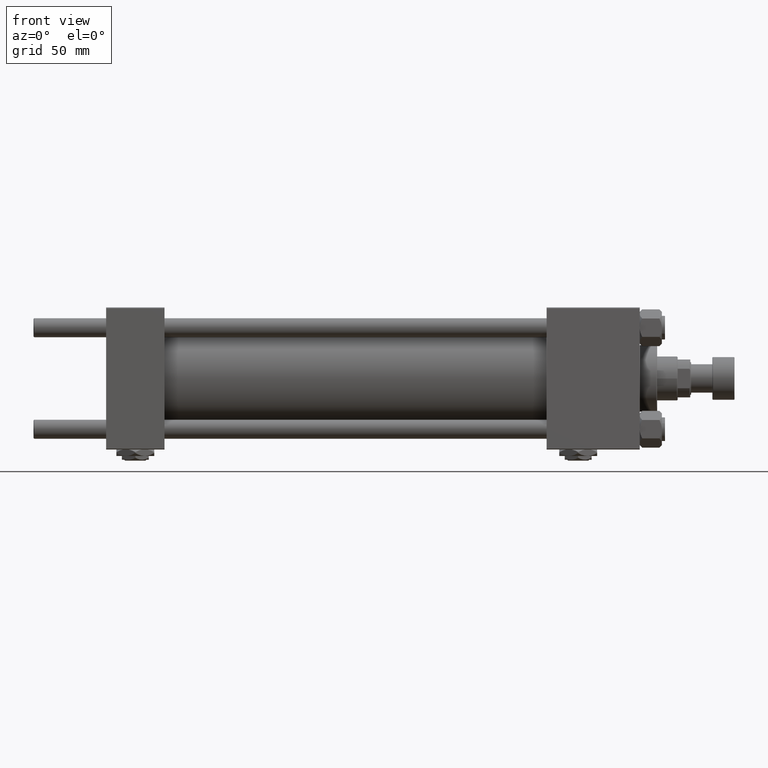
[diagram: clean part render]
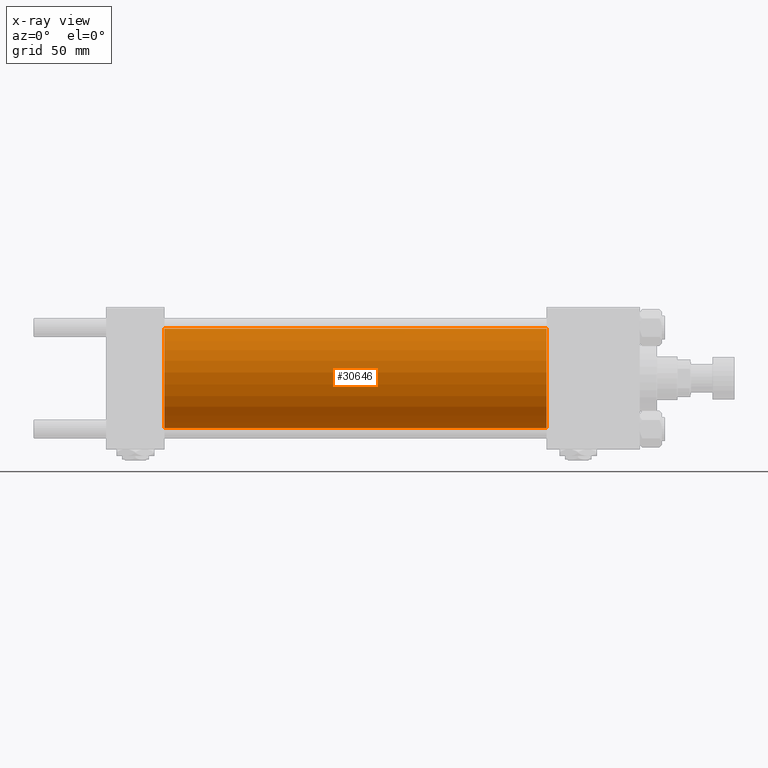
[diagram: x-ray — body ghosted, one internal face saturated and labeled with its STEP entity id]
A machine part, front view, then the same camera in x-ray: the body is ghosted and one INTERNAL B-rep face — a face not visible from any outside direction — is saturated and labeled: STEP entity #30646.
In plain terms, the highlighted cylindrical surface (partial cylindrical patch) has radius 31.5 mm, axis along (-1, -0, -0).
Its self-contained STEP definition (entity closure, byte-faithful):
#398 = CARTESIAN_POINT ( 'NONE',  ( 278.9999999999999432, 0.000000000000000000, 0.000000000000000000 ) ) ;
#1394 = DIRECTION ( 'NONE',  ( -1.000000000000000000, -0.000000000000000000, -0.000000000000000000 ) ) ;
#1429 = ORIENTED_EDGE ( 'NONE', *, *, #29437, .T. ) ;
#2427 = EDGE_CURVE ( 'NONE', #38992, #15742, #5666, .T. ) ;
#4304 = DIRECTION ( 'NONE',  ( 0.000000000000000000, 0.000000000000000000, 1.000000000000000000 ) ) ;
#5666 = CIRCLE ( 'NONE', #26778, 31.50000000000000000 ) ;
#6058 = DIRECTION ( 'NONE',  ( 0.000000000000000000, 0.000000000000000000, -1.000000000000000000 ) ) ;
#11479 = CYLINDRICAL_SURFACE ( 'NONE', #22928, 31.50000000000000000 ) ;
#11750 = CARTESIAN_POINT ( 'NONE',  ( 278.9999999999999432, 3.857637417314162689E-15, -31.50000000000000000 ) ) ;
#12055 = DIRECTION ( 'NONE',  ( 1.000000000000000000, 0.000000000000000000, 0.000000000000000000 ) ) ;
#15742 = VERTEX_POINT ( 'NONE', #40505 ) ;
#18676 = AXIS2_PLACEMENT_3D ( 'NONE', #398, #12055, #44072 ) ;
#19689 = CARTESIAN_POINT ( 'NONE',  ( 278.9999999999999432, 0.000000000000000000, 0.000000000000000000 ) ) ;
#20907 = CARTESIAN_POINT ( 'NONE',  ( 278.9999999999999432, 0.000000000000000000, 31.50000000000000000 ) ) ;
#21173 = ORIENTED_EDGE ( 'NONE', *, *, #34242, .T. ) ;
#22218 = DIRECTION ( 'NONE',  ( 1.000000000000000000, 0.000000000000000000, 0.000000000000000000 ) ) ;
#22928 = AXIS2_PLACEMENT_3D ( 'NONE', #19689, #40557, #4304 ) ;
#23725 = CARTESIAN_POINT ( 'NONE',  ( 278.9999999999999432, 3.857637417314162689E-15, -31.50000000000000000 ) ) ;
#24322 = VERTEX_POINT ( 'NONE', #20907 ) ;
#26171 = CARTESIAN_POINT ( 'NONE',  ( 37.00000000000000000, 0.000000000000000000, 0.000000000000000000 ) ) ;
#26327 = EDGE_CURVE ( 'NONE', #24322, #38992, #45567, .T. ) ;
#26755 = VERTEX_POINT ( 'NONE', #23725 ) ;
#26778 = AXIS2_PLACEMENT_3D ( 'NONE', #26171, #22218, #6058 ) ;
#28016 = VECTOR ( 'NONE', #37063, 1000.000000000000000 ) ;
#29437 = EDGE_CURVE ( 'NONE', #24322, #26755, #32993, .T. ) ;
#30646 = ADVANCED_FACE ( 'NONE', ( #40302 ), #11479, .F. ) ;
#32612 = CARTESIAN_POINT ( 'NONE',  ( 278.9999999999999432, 0.000000000000000000, 31.50000000000000000 ) ) ;
#32993 = CIRCLE ( 'NONE', #18676, 31.50000000000000000 ) ;
#34242 = EDGE_CURVE ( 'NONE', #26755, #15742, #41815, .T. ) ;
#37063 = DIRECTION ( 'NONE',  ( -1.000000000000000000, -0.000000000000000000, -0.000000000000000000 ) ) ;
#37696 = EDGE_LOOP ( 'NONE', ( #1429, #21173, #47312, #45122 ) ) ;
#38992 = VERTEX_POINT ( 'NONE', #43260 ) ;
#40302 = FACE_OUTER_BOUND ( 'NONE', #37696, .T. ) ;
#40505 = CARTESIAN_POINT ( 'NONE',  ( 37.00000000000000000, 3.857637417314162689E-15, -31.50000000000000000 ) ) ;
#40557 = DIRECTION ( 'NONE',  ( -1.000000000000000000, -0.000000000000000000, -0.000000000000000000 ) ) ;
#41815 = LINE ( 'NONE', #11750, #28016 ) ;
#43260 = CARTESIAN_POINT ( 'NONE',  ( 37.00000000000000000, 0.000000000000000000, 31.50000000000000000 ) ) ;
#44072 = DIRECTION ( 'NONE',  ( 0.000000000000000000, 0.000000000000000000, -1.000000000000000000 ) ) ;
#45122 = ORIENTED_EDGE ( 'NONE', *, *, #26327, .F. ) ;
#45567 = LINE ( 'NONE', #32612, #50632 ) ;
#47312 = ORIENTED_EDGE ( 'NONE', *, *, #2427, .F. ) ;
#50632 = VECTOR ( 'NONE', #1394, 1000.000000000000000 ) ;